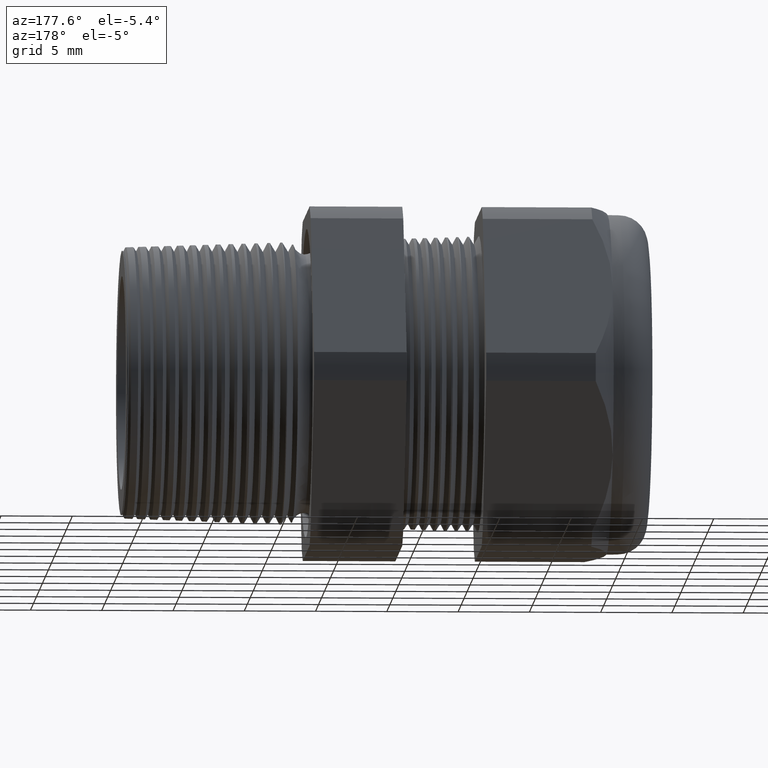
[diagram: clean part render]
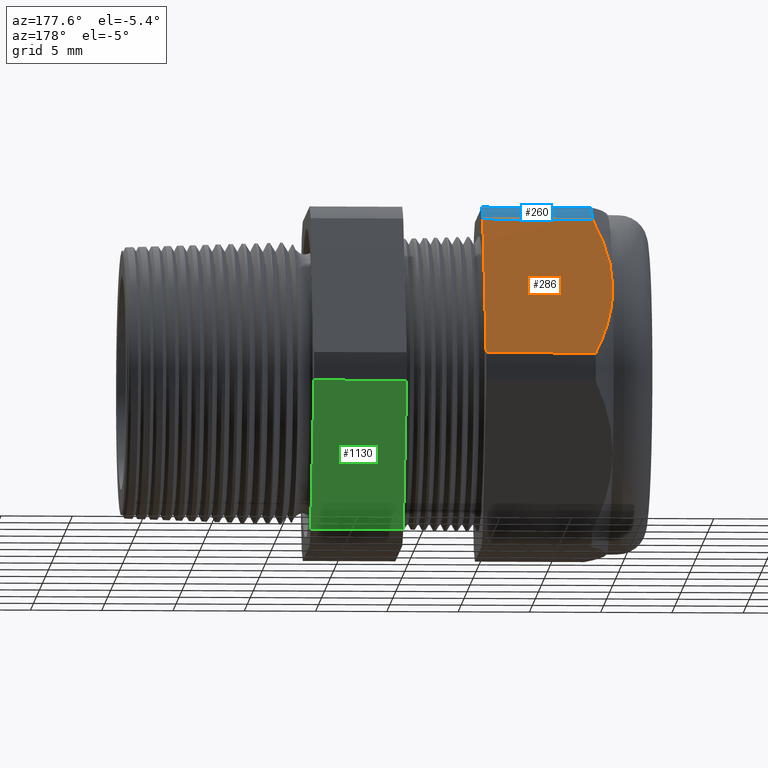
[diagram: same view with three faces highlighted in distinct colors, each labeled with its STEP entity id]
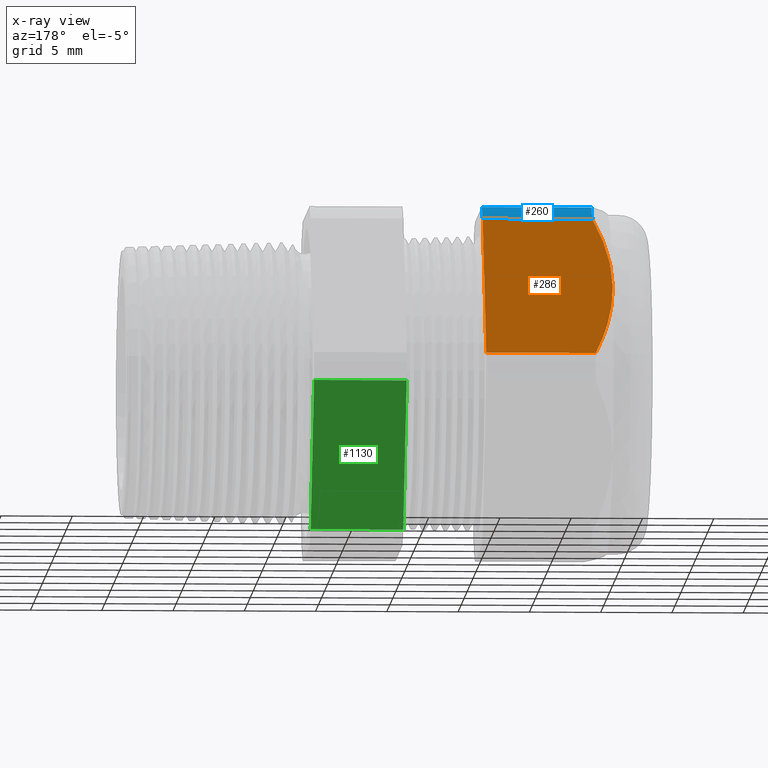
[diagram: x-ray of the same camera — body ghosted, the three highlighted faces saturated]
A machine part, auxiliary view with three faces highlighted in distinct colors.
The next image is the same camera in x-ray (body ghosted, the three faces saturated) — at least one of them is partly hidden behind the body in this view.
Their STEP definitions:

[orange] entity #286 — the highlighted planar face has unit normal (0, 0.866, 0.5).
#203 = VERTEX_POINT ( 'NONE', #2166 ) ;
#224 = VERTEX_POINT ( 'NONE', #2186 ) ;
#225 = VERTEX_POINT ( 'NONE', #2185 ) ;
#240 = EDGE_CURVE ( 'NONE', #225, #224, #2221, .T. ) ;
#270 = EDGE_CURVE ( 'NONE', #277, #203, #2265, .T. ) ;
#272 = EDGE_CURVE ( 'NONE', #203, #224, #2321, .T. ) ;
#274 = ORIENTED_EDGE ( 'NONE', *, *, #270, .T. ) ;
#275 = ORIENTED_EDGE ( 'NONE', *, *, #272, .T. ) ;
#277 = VERTEX_POINT ( 'NONE', #2301 ) ;
#280 = VERTEX_POINT ( 'NONE', #2353 ) ;
#282 = EDGE_CURVE ( 'NONE', #280, #277, #2347, .T. ) ;
#283 = EDGE_LOOP ( 'NONE', ( #284, #274, #275, #407, #405 ) ) ;
#284 = ORIENTED_EDGE ( 'NONE', *, *, #282, .T. ) ;
#286 = ADVANCED_FACE ( 'NONE', ( #2337 ), #2336, .T. ) ;
#404 = EDGE_CURVE ( 'NONE', #280, #225, #2564, .T. ) ;
#405 = ORIENTED_EDGE ( 'NONE', *, *, #404, .F. ) ;
#407 = ORIENTED_EDGE ( 'NONE', *, *, #240, .F. ) ;
#2166 = CARTESIAN_POINT ( 'NONE',  ( -1.139763779527558800, 0.4070319397786862900, 0.2349999999999998800 ) ) ;
#2185 = CARTESIAN_POINT ( 'NONE',  ( -0.7854330708661414500, 0.2938165587564945900, 0.4310947921287050500 ) ) ;
#2186 = CARTESIAN_POINT ( 'NONE',  ( -1.088063779527558700, 0.2938165587564946500, 0.4310947921287050500 ) ) ;
#2214 = DIRECTION ( 'NONE',  ( -1.000000000000000000, 0.0000000000000000000, 0.0000000000000000000 ) ) ;
#2215 = VECTOR ( 'NONE', #2214, 39.37007874015748100 ) ;
#2216 = CARTESIAN_POINT ( 'NONE',  ( 0.1999999999999999300, 0.2938165587564945900, 0.4310947921287050500 ) ) ;
#2221 = LINE ( 'NONE', #2216, #2215 ) ;
#2265 = B_SPLINE_CURVE_WITH_KNOTS ( 'NONE', 3,
 ( #2320, #2319, #2318, #2317, #2316, #2315, #2314, #2313, #2312, #2311 ),
 .UNSPECIFIED., .F., .F.,
 ( 4, 2, 2, 2, 4 ),
 ( 2.483251536652191700E-007, 0.002951677829872985200, 0.004427392582232645400, 0.005165249958412477200, 0.005903107334592309900 ),
 .UNSPECIFIED. ) ;
#2301 = CARTESIAN_POINT ( 'NONE',  ( -1.088063779527558700, 0.5202473208008776600, 0.03890520787129488800 ) ) ;
#2305 = CARTESIAN_POINT ( 'NONE',  ( -1.088063779527558700, 0.2938165587564946500, 0.4310947921287050500 ) ) ;
#2306 = CARTESIAN_POINT ( 'NONE',  ( -1.103717189021966600, 0.3118494083116971100, 0.3998609804938487200 ) ) ;
#2307 = CARTESIAN_POINT ( 'NONE',  ( -1.116822062588142200, 0.3304876304616240500, 0.3675786327674193100 ) ) ;
#2308 = CARTESIAN_POINT ( 'NONE',  ( -1.134818111347314800, 0.3682441305491640500, 0.3021824562998213200 ) ) ;
#2309 = CARTESIAN_POINT ( 'NONE',  ( -1.139763779527558800, 0.3874426189162283900, 0.2689296990195457200 ) ) ;
#2310 = CARTESIAN_POINT ( 'NONE',  ( -1.139763779527558800, 0.4070319397786862900, 0.2349999999999998800 ) ) ;
#2311 = CARTESIAN_POINT ( 'NONE',  ( -1.139763779527558800, 0.4070319397786862900, 0.2349999999999998800 ) ) ;
#2312 = CARTESIAN_POINT ( 'NONE',  ( -1.139763779527558800, 0.4119326305003308500, 0.2265117546779302800 ) ) ;
#2313 = CARTESIAN_POINT ( 'NONE',  ( -1.139453644849873500, 0.4168781440523187700, 0.2179458739363666600 ) ) ;
#2314 = CARTESIAN_POINT ( 'NONE',  ( -1.138221849142435000, 0.4267040029977489100, 0.2009269870148764600 ) ) ;
#2315 = CARTESIAN_POINT ( 'NONE',  ( -1.137304216752655700, 0.4315793332085024500, 0.1924826673861756400 ) ) ;
#2316 = CARTESIAN_POINT ( 'NONE',  ( -1.133700751481475000, 0.4460993342073094600, 0.1673332879302909000 ) ) ;
#2317 = CARTESIAN_POINT ( 'NONE',  ( -1.130164085422761000, 0.4556379823307482600, 0.1508118647449731800 ) ) ;
#2318 = CARTESIAN_POINT ( 'NONE',  ( -1.116620445010038300, 0.4838883643614173000, 0.1018807677346238200 ) ) ;
#2319 = CARTESIAN_POINT ( 'NONE',  ( -1.103697825203295400, 0.5022367785154769900, 0.07010038218147647500 ) ) ;
#2320 = CARTESIAN_POINT ( 'NONE',  ( -1.088063779527558700, 0.5202473208008776600, 0.03890520787129488800 ) ) ;
#2321 = B_SPLINE_CURVE_WITH_KNOTS ( 'NONE', 3,
 ( #2310, #2309, #2308, #2307, #2306, #2305 ),
 .UNSPECIFIED., .F., .F.,
 ( 4, 2, 4 ),
 ( 0.005903107334592309900, 0.008852512982428773600, 0.01180191863026524100 ),
 .UNSPECIFIED. ) ;
#2332 = DIRECTION ( 'NONE',  ( 0.0000000000000000000, -0.4999999999999997200, 0.8660254037844388200 ) ) ;
#2333 = DIRECTION ( 'NONE',  ( 0.0000000000000000000, 0.8660254037844388200, 0.4999999999999997200 ) ) ;
#2334 = CARTESIAN_POINT ( 'NONE',  ( 0.1999999999999999300, 0.2938165587564946500, 0.4310947921287050500 ) ) ;
#2335 = AXIS2_PLACEMENT_3D ( 'NONE', #2334, #2333, #2332 ) ;
#2336 = PLANE ( 'NONE',  #2335 ) ;
#2337 = FACE_OUTER_BOUND ( 'NONE', #283, .T. ) ;
#2344 = DIRECTION ( 'NONE',  ( -1.000000000000000000, 0.0000000000000000000, 0.0000000000000000000 ) ) ;
#2345 = VECTOR ( 'NONE', #2344, 39.37007874015748100 ) ;
#2346 = CARTESIAN_POINT ( 'NONE',  ( 0.1999999999999999300, 0.5202473208008776600, 0.03890520787129488800 ) ) ;
#2347 = LINE ( 'NONE', #2346, #2345 ) ;
#2353 = CARTESIAN_POINT ( 'NONE',  ( -0.7854330708661414500, 0.5202473208008776600, 0.03890520787129488800 ) ) ;
#2561 = DIRECTION ( 'NONE',  ( 0.0000000000000000000, -0.4999999999999997200, 0.8660254037844388200 ) ) ;
#2562 = VECTOR ( 'NONE', #2561, 39.37007874015748900 ) ;
#2563 = CARTESIAN_POINT ( 'NONE',  ( -0.7854330708661414500, 0.5095319397786860500, 0.05746479222419000100 ) ) ;
#2564 = LINE ( 'NONE', #2563, #2562 ) ;

[blue] entity #260 — the highlighted cylindrical surface (partial cylindrical patch) has radius 13.2512 mm, axis along (-1, 0, 0).
#3 = EDGE_CURVE ( 'NONE', #10, #1309, #1784, .T. ) ;
#10 = VERTEX_POINT ( 'NONE', #1767 ) ;
#224 = VERTEX_POINT ( 'NONE', #2186 ) ;
#225 = VERTEX_POINT ( 'NONE', #2185 ) ;
#239 = ORIENTED_EDGE ( 'NONE', *, *, #240, .T. ) ;
#240 = EDGE_CURVE ( 'NONE', #225, #224, #2221, .T. ) ;
#241 = EDGE_LOOP ( 'NONE', ( #239, #290, #289, #287 ) ) ;
#260 = ADVANCED_FACE ( 'NONE', ( #2233 ), #2287, .T. ) ;
#285 = EDGE_CURVE ( 'NONE', #225, #10, #2342, .T. ) ;
#287 = ORIENTED_EDGE ( 'NONE', *, *, #285, .F. ) ;
#289 = ORIENTED_EDGE ( 'NONE', *, *, #3, .F. ) ;
#290 = ORIENTED_EDGE ( 'NONE', *, *, #291, .T. ) ;
#291 = EDGE_CURVE ( 'NONE', #224, #1309, #2323, .T. ) ;
#1309 = VERTEX_POINT ( 'NONE', #4155 ) ;
#1767 = CARTESIAN_POINT ( 'NONE',  ( -0.7854330708661414500, 0.2264307620443832800, 0.4699999999999999200 ) ) ;
#1777 = DIRECTION ( 'NONE',  ( -1.000000000000000000, 0.0000000000000000000, 0.0000000000000000000 ) ) ;
#1778 = VECTOR ( 'NONE', #1777, 39.37007874015748100 ) ;
#1779 = CARTESIAN_POINT ( 'NONE',  ( 0.1999999999999999300, 0.2264307620443832800, 0.4699999999999999200 ) ) ;
#1784 = LINE ( 'NONE', #1779, #1778 ) ;
#1819 = DIRECTION ( 'NONE',  ( 1.000000000000000000, 0.0000000000000000000, 0.0000000000000000000 ) ) ;
#1820 = CARTESIAN_POINT ( 'NONE',  ( -1.088063779527558700, 0.0000000000000000000, 0.0000000000000000000 ) ) ;
#2077 = DIRECTION ( 'NONE',  ( 0.0000000000000000000, 0.0000000000000000000, -1.000000000000000000 ) ) ;
#2185 = CARTESIAN_POINT ( 'NONE',  ( -0.7854330708661414500, 0.2938165587564945900, 0.4310947921287050500 ) ) ;
#2186 = CARTESIAN_POINT ( 'NONE',  ( -1.088063779527558700, 0.2938165587564946500, 0.4310947921287050500 ) ) ;
#2214 = DIRECTION ( 'NONE',  ( -1.000000000000000000, 0.0000000000000000000, 0.0000000000000000000 ) ) ;
#2215 = VECTOR ( 'NONE', #2214, 39.37007874015748100 ) ;
#2216 = CARTESIAN_POINT ( 'NONE',  ( 0.1999999999999999300, 0.2938165587564945900, 0.4310947921287050500 ) ) ;
#2221 = LINE ( 'NONE', #2216, #2215 ) ;
#2233 = FACE_OUTER_BOUND ( 'NONE', #241, .T. ) ;
#2283 = DIRECTION ( 'NONE',  ( 0.0000000000000000000, 0.0000000000000000000, 1.000000000000000000 ) ) ;
#2284 = DIRECTION ( 'NONE',  ( -1.000000000000000000, 0.0000000000000000000, 0.0000000000000000000 ) ) ;
#2285 = CARTESIAN_POINT ( 'NONE',  ( 0.1999999999999999300, 0.0000000000000000000, 0.0000000000000000000 ) ) ;
#2286 = AXIS2_PLACEMENT_3D ( 'NONE', #2285, #2284, #2283 ) ;
#2287 = CYLINDRICAL_SURFACE ( 'NONE', #2286, 0.5217000000000000500 ) ;
#2322 = AXIS2_PLACEMENT_3D ( 'NONE', #1820, #1819, #2077 ) ;
#2323 = CIRCLE ( 'NONE', #2322, 0.5217000000000000500 ) ;
#2338 = DIRECTION ( 'NONE',  ( 0.0000000000000000000, 0.0000000000000000000, -1.000000000000000000 ) ) ;
#2339 = DIRECTION ( 'NONE',  ( 1.000000000000000000, 0.0000000000000000000, 0.0000000000000000000 ) ) ;
#2340 = CARTESIAN_POINT ( 'NONE',  ( -0.7854330708661414500, 0.0000000000000000000, 0.0000000000000000000 ) ) ;
#2341 = AXIS2_PLACEMENT_3D ( 'NONE', #2340, #2339, #2338 ) ;
#2342 = CIRCLE ( 'NONE', #2341, 0.5217000000000000500 ) ;
#4155 = CARTESIAN_POINT ( 'NONE',  ( -1.088063779527558700, 0.2264307620443833400, 0.4700000000000000300 ) ) ;

[green] entity #1130 — the highlighted planar face has unit normal (0, 0.866, -0.5).
#416 = VERTEX_POINT ( 'NONE', #2545 ) ;
#417 = VERTEX_POINT ( 'NONE', #2544 ) ;
#418 = EDGE_CURVE ( 'NONE', #416, #417, #2543, .T. ) ;
#1032 = VERTEX_POINT ( 'NONE', #3757 ) ;
#1034 = EDGE_CURVE ( 'NONE', #1032, #1035, #3756, .T. ) ;
#1035 = VERTEX_POINT ( 'NONE', #3752 ) ;
#1125 = EDGE_CURVE ( 'NONE', #417, #1032, #3887, .T. ) ;
#1130 = ADVANCED_FACE ( 'NONE', ( #3945 ), #3944, .T. ) ;
#1131 = EDGE_LOOP ( 'NONE', ( #1132, #1133, #1134, #1135 ) ) ;
#1132 = ORIENTED_EDGE ( 'NONE', *, *, #1202, .T. ) ;
#1133 = ORIENTED_EDGE ( 'NONE', *, *, #1034, .F. ) ;
#1134 = ORIENTED_EDGE ( 'NONE', *, *, #1125, .F. ) ;
#1135 = ORIENTED_EDGE ( 'NONE', *, *, #418, .F. ) ;
#1202 = EDGE_CURVE ( 'NONE', #416, #1035, #3990, .T. ) ;
#2543 = LINE ( 'NONE', #2606, #2605 ) ;
#2544 = CARTESIAN_POINT ( 'NONE',  ( -0.3100000000000000000, 0.5202473208008777700, -0.03890520787129480400 ) ) ;
#2545 = CARTESIAN_POINT ( 'NONE',  ( -0.3100000000000000000, 0.2938165587564947100, -0.4310947921287049400 ) ) ;
#2604 = DIRECTION ( 'NONE',  ( 0.0000000000000000000, 0.4999999999999998300, 0.8660254037844388200 ) ) ;
#2605 = VECTOR ( 'NONE', #2604, 39.37007874015748100 ) ;
#2606 = CARTESIAN_POINT ( 'NONE',  ( -0.3100000000000000000, 0.6420319397786861100, 0.1720319397786861100 ) ) ;
#3752 = CARTESIAN_POINT ( 'NONE',  ( -0.5659055118110235500, 0.2938165587564947100, -0.4310947921287048800 ) ) ;
#3753 = DIRECTION ( 'NONE',  ( 0.0000000000000000000, -0.4999999999999998300, -0.8660254037844388200 ) ) ;
#3754 = VECTOR ( 'NONE', #3753, 39.37007874015748100 ) ;
#3755 = CARTESIAN_POINT ( 'NONE',  ( -0.5659055118110235500, 0.6420319397786861100, 0.1720319397786861900 ) ) ;
#3756 = LINE ( 'NONE', #3755, #3754 ) ;
#3757 = CARTESIAN_POINT ( 'NONE',  ( -0.5659055118110235500, 0.5202473208008777700, -0.03890520787129476300 ) ) ;
#3884 = DIRECTION ( 'NONE',  ( -1.000000000000000000, 0.0000000000000000000, 0.0000000000000000000 ) ) ;
#3885 = VECTOR ( 'NONE', #3884, 39.37007874015748100 ) ;
#3886 = CARTESIAN_POINT ( 'NONE',  ( 0.1999999999999999300, 0.5202473208008777700, -0.03890520787129476300 ) ) ;
#3887 = LINE ( 'NONE', #3886, #3885 ) ;
#3940 = DIRECTION ( 'NONE',  ( 0.0000000000000000000, 0.4999999999999998300, 0.8660254037844388200 ) ) ;
#3941 = DIRECTION ( 'NONE',  ( 0.0000000000000000000, 0.8660254037844388200, -0.4999999999999998300 ) ) ;
#3942 = CARTESIAN_POINT ( 'NONE',  ( 0.1999999999999999300, 0.5202473208008777700, -0.03890520787129476300 ) ) ;
#3943 = AXIS2_PLACEMENT_3D ( 'NONE', #3942, #3941, #3940 ) ;
#3944 = PLANE ( 'NONE',  #3943 ) ;
#3945 = FACE_OUTER_BOUND ( 'NONE', #1131, .T. ) ;
#3984 = DIRECTION ( 'NONE',  ( -1.000000000000000000, 0.0000000000000000000, 0.0000000000000000000 ) ) ;
#3985 = VECTOR ( 'NONE', #3984, 39.37007874015748100 ) ;
#3986 = CARTESIAN_POINT ( 'NONE',  ( 0.1999999999999999300, 0.2938165587564947100, -0.4310947921287049400 ) ) ;
#3990 = LINE ( 'NONE', #3986, #3985 ) ;